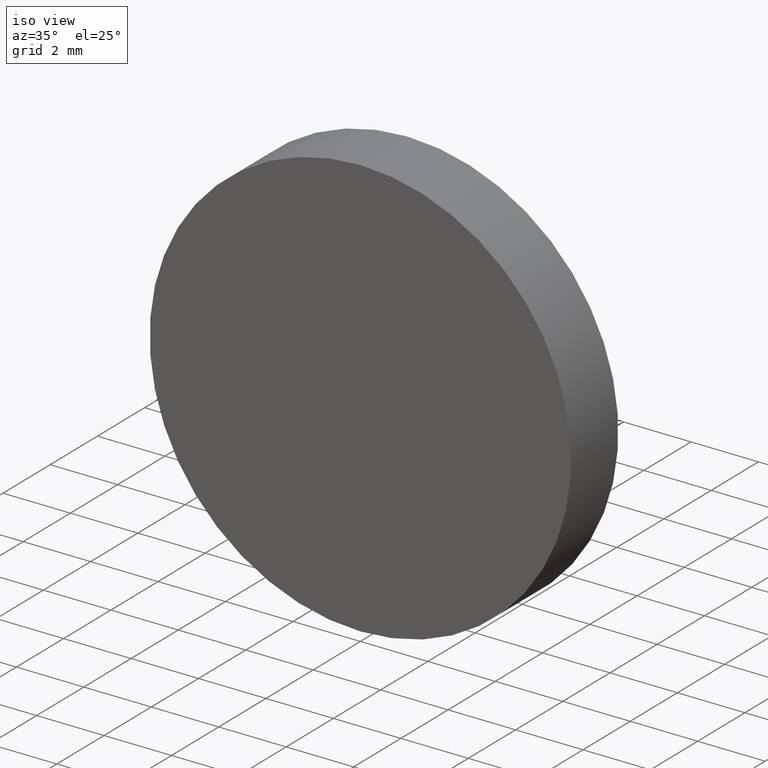
[diagram: clean part render]
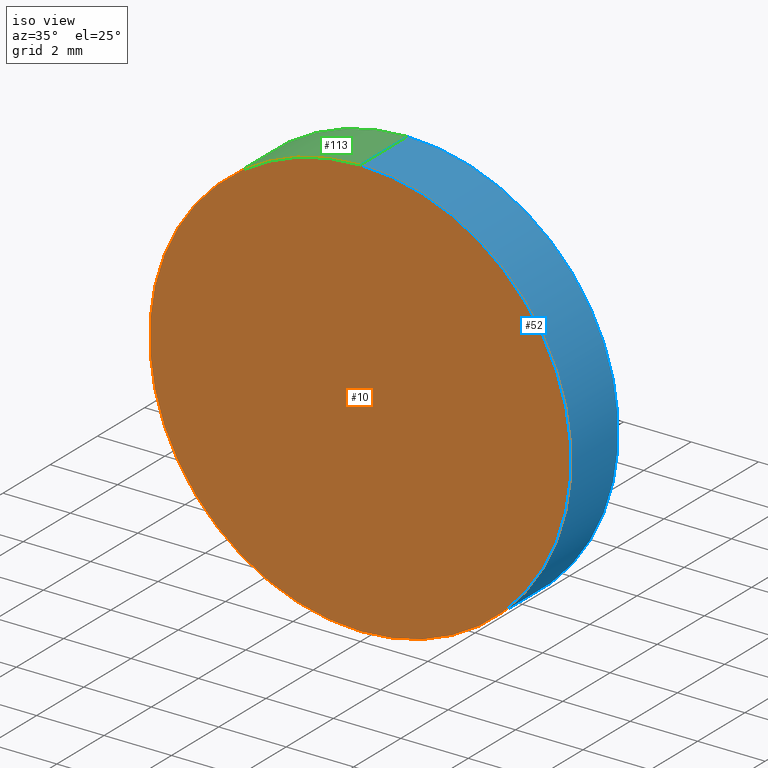
[diagram: same view with three faces highlighted in distinct colors, each labeled with its STEP entity id]
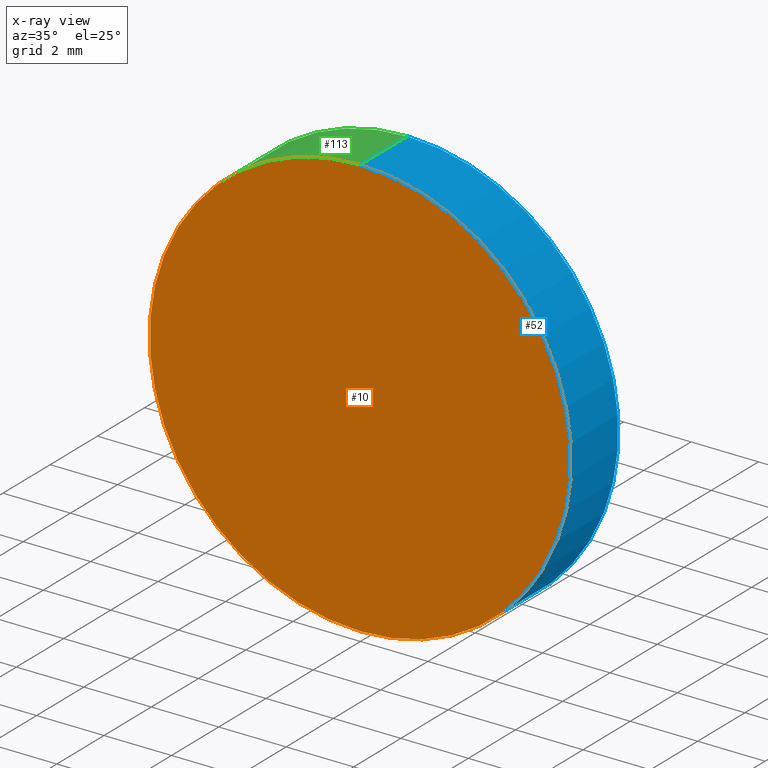
[diagram: x-ray of the same camera — body ghosted, the three highlighted faces saturated]
A machine part, iso view with three faces highlighted in distinct colors.
The next image is the same camera in x-ray (body ghosted, the three faces saturated) — at least one of them is partly hidden behind the body in this view.
Their STEP definitions:

[orange] entity #10 — the highlighted planar face has unit normal (0, 1, 0).
#7 = VERTEX_POINT ( 'NONE', #45 ) ;
#10 = ADVANCED_FACE ( 'NONE', ( #53 ), #115, .F. ) ;
#22 = DIRECTION ( 'NONE',  ( 0.0000000000000000000, 1.000000000000000000, 0.0000000000000000000 ) ) ;
#33 = ORIENTED_EDGE ( 'NONE', *, *, #62, .F. ) ;
#38 = CARTESIAN_POINT ( 'NONE',  ( 0.0000000000000000000, 0.0000000000000000000, 0.0000000000000000000 ) ) ;
#40 = DIRECTION ( 'NONE',  ( 0.0000000000000000000, -0.0000000000000000000, 1.000000000000000000 ) ) ;
#45 = CARTESIAN_POINT ( 'NONE',  ( 7.654042494670955600E-016, 0.0000000000000000000, 6.249999999999998200 ) ) ;
#53 = FACE_OUTER_BOUND ( 'NONE', #130, .T. ) ;
#62 = EDGE_CURVE ( 'NONE', #114, #7, #133, .T. ) ;
#74 = DIRECTION ( 'NONE',  ( 0.0000000000000000000, 1.000000000000000000, 0.0000000000000000000 ) ) ;
#76 = AXIS2_PLACEMENT_3D ( 'NONE', #138, #74, #128 ) ;
#78 = EDGE_CURVE ( 'NONE', #7, #114, #89, .T. ) ;
#86 = AXIS2_PLACEMENT_3D ( 'NONE', #38, #118, #40 ) ;
#89 = CIRCLE ( 'NONE', #131, 6.249999999999998200 ) ;
#94 = DIRECTION ( 'NONE',  ( 0.0000000000000000000, 0.0000000000000000000, 1.000000000000000000 ) ) ;
#101 = ORIENTED_EDGE ( 'NONE', *, *, #78, .F. ) ;
#104 = CARTESIAN_POINT ( 'NONE',  ( 0.0000000000000000000, 0.0000000000000000000, 0.0000000000000000000 ) ) ;
#114 = VERTEX_POINT ( 'NONE', #121 ) ;
#115 = PLANE ( 'NONE',  #86 ) ;
#118 = DIRECTION ( 'NONE',  ( 0.0000000000000000000, 1.000000000000000000, 0.0000000000000000000 ) ) ;
#121 = CARTESIAN_POINT ( 'NONE',  ( 0.0000000000000000000, 0.0000000000000000000, -6.249999999999998200 ) ) ;
#128 = DIRECTION ( 'NONE',  ( 0.0000000000000000000, 0.0000000000000000000, 1.000000000000000000 ) ) ;
#130 = EDGE_LOOP ( 'NONE', ( #33, #101 ) ) ;
#131 = AXIS2_PLACEMENT_3D ( 'NONE', #104, #22, #94 ) ;
#133 = CIRCLE ( 'NONE', #76, 6.249999999999998200 ) ;
#138 = CARTESIAN_POINT ( 'NONE',  ( 0.0000000000000000000, 0.0000000000000000000, 0.0000000000000000000 ) ) ;

[blue] entity #52 — the highlighted cylindrical surface (partial cylindrical patch) has radius 6.25 mm, axis along (-0, -1, -0).
#2 = EDGE_LOOP ( 'NONE', ( #107, #28, #41, #119 ) ) ;
#7 = VERTEX_POINT ( 'NONE', #45 ) ;
#11 = DIRECTION ( 'NONE',  ( -0.0000000000000000000, -1.000000000000000000, -0.0000000000000000000 ) ) ;
#18 = VECTOR ( 'NONE', #23, 1000.000000000000000 ) ;
#22 = DIRECTION ( 'NONE',  ( 0.0000000000000000000, 1.000000000000000000, 0.0000000000000000000 ) ) ;
#23 = DIRECTION ( 'NONE',  ( -0.0000000000000000000, -1.000000000000000000, -0.0000000000000000000 ) ) ;
#25 = LINE ( 'NONE', #105, #18 ) ;
#27 = AXIS2_PLACEMENT_3D ( 'NONE', #140, #58, #110 ) ;
#28 = ORIENTED_EDGE ( 'NONE', *, *, #54, .T. ) ;
#30 = VECTOR ( 'NONE', #11, 1000.000000000000000 ) ;
#31 = VERTEX_POINT ( 'NONE', #116 ) ;
#41 = ORIENTED_EDGE ( 'NONE', *, *, #78, .T. ) ;
#45 = CARTESIAN_POINT ( 'NONE',  ( 7.654042494670955600E-016, 0.0000000000000000000, 6.249999999999998200 ) ) ;
#52 = ADVANCED_FACE ( 'NONE', ( #129 ), #139, .T. ) ;
#54 = EDGE_CURVE ( 'NONE', #135, #7, #25, .T. ) ;
#58 = DIRECTION ( 'NONE',  ( -0.0000000000000000000, -1.000000000000000000, -0.0000000000000000000 ) ) ;
#68 = AXIS2_PLACEMENT_3D ( 'NONE', #137, #73, #127 ) ;
#72 = EDGE_CURVE ( 'NONE', #31, #114, #117, .T. ) ;
#73 = DIRECTION ( 'NONE',  ( 0.0000000000000000000, 1.000000000000000000, 0.0000000000000000000 ) ) ;
#78 = EDGE_CURVE ( 'NONE', #7, #114, #89, .T. ) ;
#87 = EDGE_CURVE ( 'NONE', #135, #31, #96, .T. ) ;
#89 = CIRCLE ( 'NONE', #131, 6.249999999999998200 ) ;
#94 = DIRECTION ( 'NONE',  ( 0.0000000000000000000, 0.0000000000000000000, 1.000000000000000000 ) ) ;
#96 = CIRCLE ( 'NONE', #68, 6.249999999999998200 ) ;
#104 = CARTESIAN_POINT ( 'NONE',  ( 0.0000000000000000000, 0.0000000000000000000, 0.0000000000000000000 ) ) ;
#105 = CARTESIAN_POINT ( 'NONE',  ( 7.654042494670955600E-016, 2.000000000000000000, 6.249999999999998200 ) ) ;
#107 = ORIENTED_EDGE ( 'NONE', *, *, #87, .F. ) ;
#110 = DIRECTION ( 'NONE',  ( 0.0000000000000000000, 0.0000000000000000000, -1.000000000000000000 ) ) ;
#112 = CARTESIAN_POINT ( 'NONE',  ( 7.654042494670955600E-016, 2.000000000000000000, 6.249999999999998200 ) ) ;
#114 = VERTEX_POINT ( 'NONE', #121 ) ;
#116 = CARTESIAN_POINT ( 'NONE',  ( 0.0000000000000000000, 2.000000000000000000, -6.249999999999998200 ) ) ;
#117 = LINE ( 'NONE', #122, #30 ) ;
#119 = ORIENTED_EDGE ( 'NONE', *, *, #72, .F. ) ;
#121 = CARTESIAN_POINT ( 'NONE',  ( 0.0000000000000000000, 0.0000000000000000000, -6.249999999999998200 ) ) ;
#122 = CARTESIAN_POINT ( 'NONE',  ( 0.0000000000000000000, 2.000000000000000000, -6.249999999999998200 ) ) ;
#127 = DIRECTION ( 'NONE',  ( 0.0000000000000000000, 0.0000000000000000000, 1.000000000000000000 ) ) ;
#129 = FACE_OUTER_BOUND ( 'NONE', #2, .T. ) ;
#131 = AXIS2_PLACEMENT_3D ( 'NONE', #104, #22, #94 ) ;
#135 = VERTEX_POINT ( 'NONE', #112 ) ;
#137 = CARTESIAN_POINT ( 'NONE',  ( 0.0000000000000000000, 2.000000000000000000, 0.0000000000000000000 ) ) ;
#139 = CYLINDRICAL_SURFACE ( 'NONE', #27, 6.249999999999998200 ) ;
#140 = CARTESIAN_POINT ( 'NONE',  ( 0.0000000000000000000, 2.000000000000000000, 0.0000000000000000000 ) ) ;

[green] entity #113 — the highlighted cylindrical surface (partial cylindrical patch) has radius 6.25 mm, axis along (-0, -1, -0).
#5 = ORIENTED_EDGE ( 'NONE', *, *, #47, .F. ) ;
#7 = VERTEX_POINT ( 'NONE', #45 ) ;
#11 = DIRECTION ( 'NONE',  ( -0.0000000000000000000, -1.000000000000000000, -0.0000000000000000000 ) ) ;
#18 = VECTOR ( 'NONE', #23, 1000.000000000000000 ) ;
#23 = DIRECTION ( 'NONE',  ( -0.0000000000000000000, -1.000000000000000000, -0.0000000000000000000 ) ) ;
#24 = DIRECTION ( 'NONE',  ( 0.0000000000000000000, 1.000000000000000000, 0.0000000000000000000 ) ) ;
#25 = LINE ( 'NONE', #105, #18 ) ;
#30 = VECTOR ( 'NONE', #11, 1000.000000000000000 ) ;
#31 = VERTEX_POINT ( 'NONE', #116 ) ;
#35 = CARTESIAN_POINT ( 'NONE',  ( 0.0000000000000000000, 2.000000000000000000, 0.0000000000000000000 ) ) ;
#36 = AXIS2_PLACEMENT_3D ( 'NONE', #35, #82, #95 ) ;
#37 = FACE_OUTER_BOUND ( 'NONE', #123, .T. ) ;
#45 = CARTESIAN_POINT ( 'NONE',  ( 7.654042494670955600E-016, 0.0000000000000000000, 6.249999999999998200 ) ) ;
#47 = EDGE_CURVE ( 'NONE', #31, #135, #109, .T. ) ;
#54 = EDGE_CURVE ( 'NONE', #135, #7, #25, .T. ) ;
#56 = ORIENTED_EDGE ( 'NONE', *, *, #62, .T. ) ;
#60 = ORIENTED_EDGE ( 'NONE', *, *, #72, .T. ) ;
#62 = EDGE_CURVE ( 'NONE', #114, #7, #133, .T. ) ;
#67 = CYLINDRICAL_SURFACE ( 'NONE', #36, 6.249999999999998200 ) ;
#72 = EDGE_CURVE ( 'NONE', #31, #114, #117, .T. ) ;
#74 = DIRECTION ( 'NONE',  ( 0.0000000000000000000, 1.000000000000000000, 0.0000000000000000000 ) ) ;
#76 = AXIS2_PLACEMENT_3D ( 'NONE', #138, #74, #128 ) ;
#82 = DIRECTION ( 'NONE',  ( -0.0000000000000000000, -1.000000000000000000, -0.0000000000000000000 ) ) ;
#95 = DIRECTION ( 'NONE',  ( 0.0000000000000000000, 0.0000000000000000000, -1.000000000000000000 ) ) ;
#98 = DIRECTION ( 'NONE',  ( 0.0000000000000000000, 0.0000000000000000000, 1.000000000000000000 ) ) ;
#99 = ORIENTED_EDGE ( 'NONE', *, *, #54, .F. ) ;
#105 = CARTESIAN_POINT ( 'NONE',  ( 7.654042494670955600E-016, 2.000000000000000000, 6.249999999999998200 ) ) ;
#106 = CARTESIAN_POINT ( 'NONE',  ( 0.0000000000000000000, 2.000000000000000000, 0.0000000000000000000 ) ) ;
#109 = CIRCLE ( 'NONE', #134, 6.249999999999998200 ) ;
#112 = CARTESIAN_POINT ( 'NONE',  ( 7.654042494670955600E-016, 2.000000000000000000, 6.249999999999998200 ) ) ;
#113 = ADVANCED_FACE ( 'NONE', ( #37 ), #67, .T. ) ;
#114 = VERTEX_POINT ( 'NONE', #121 ) ;
#116 = CARTESIAN_POINT ( 'NONE',  ( 0.0000000000000000000, 2.000000000000000000, -6.249999999999998200 ) ) ;
#117 = LINE ( 'NONE', #122, #30 ) ;
#121 = CARTESIAN_POINT ( 'NONE',  ( 0.0000000000000000000, 0.0000000000000000000, -6.249999999999998200 ) ) ;
#122 = CARTESIAN_POINT ( 'NONE',  ( 0.0000000000000000000, 2.000000000000000000, -6.249999999999998200 ) ) ;
#123 = EDGE_LOOP ( 'NONE', ( #99, #5, #60, #56 ) ) ;
#128 = DIRECTION ( 'NONE',  ( 0.0000000000000000000, 0.0000000000000000000, 1.000000000000000000 ) ) ;
#133 = CIRCLE ( 'NONE', #76, 6.249999999999998200 ) ;
#134 = AXIS2_PLACEMENT_3D ( 'NONE', #106, #24, #98 ) ;
#135 = VERTEX_POINT ( 'NONE', #112 ) ;
#138 = CARTESIAN_POINT ( 'NONE',  ( 0.0000000000000000000, 0.0000000000000000000, 0.0000000000000000000 ) ) ;